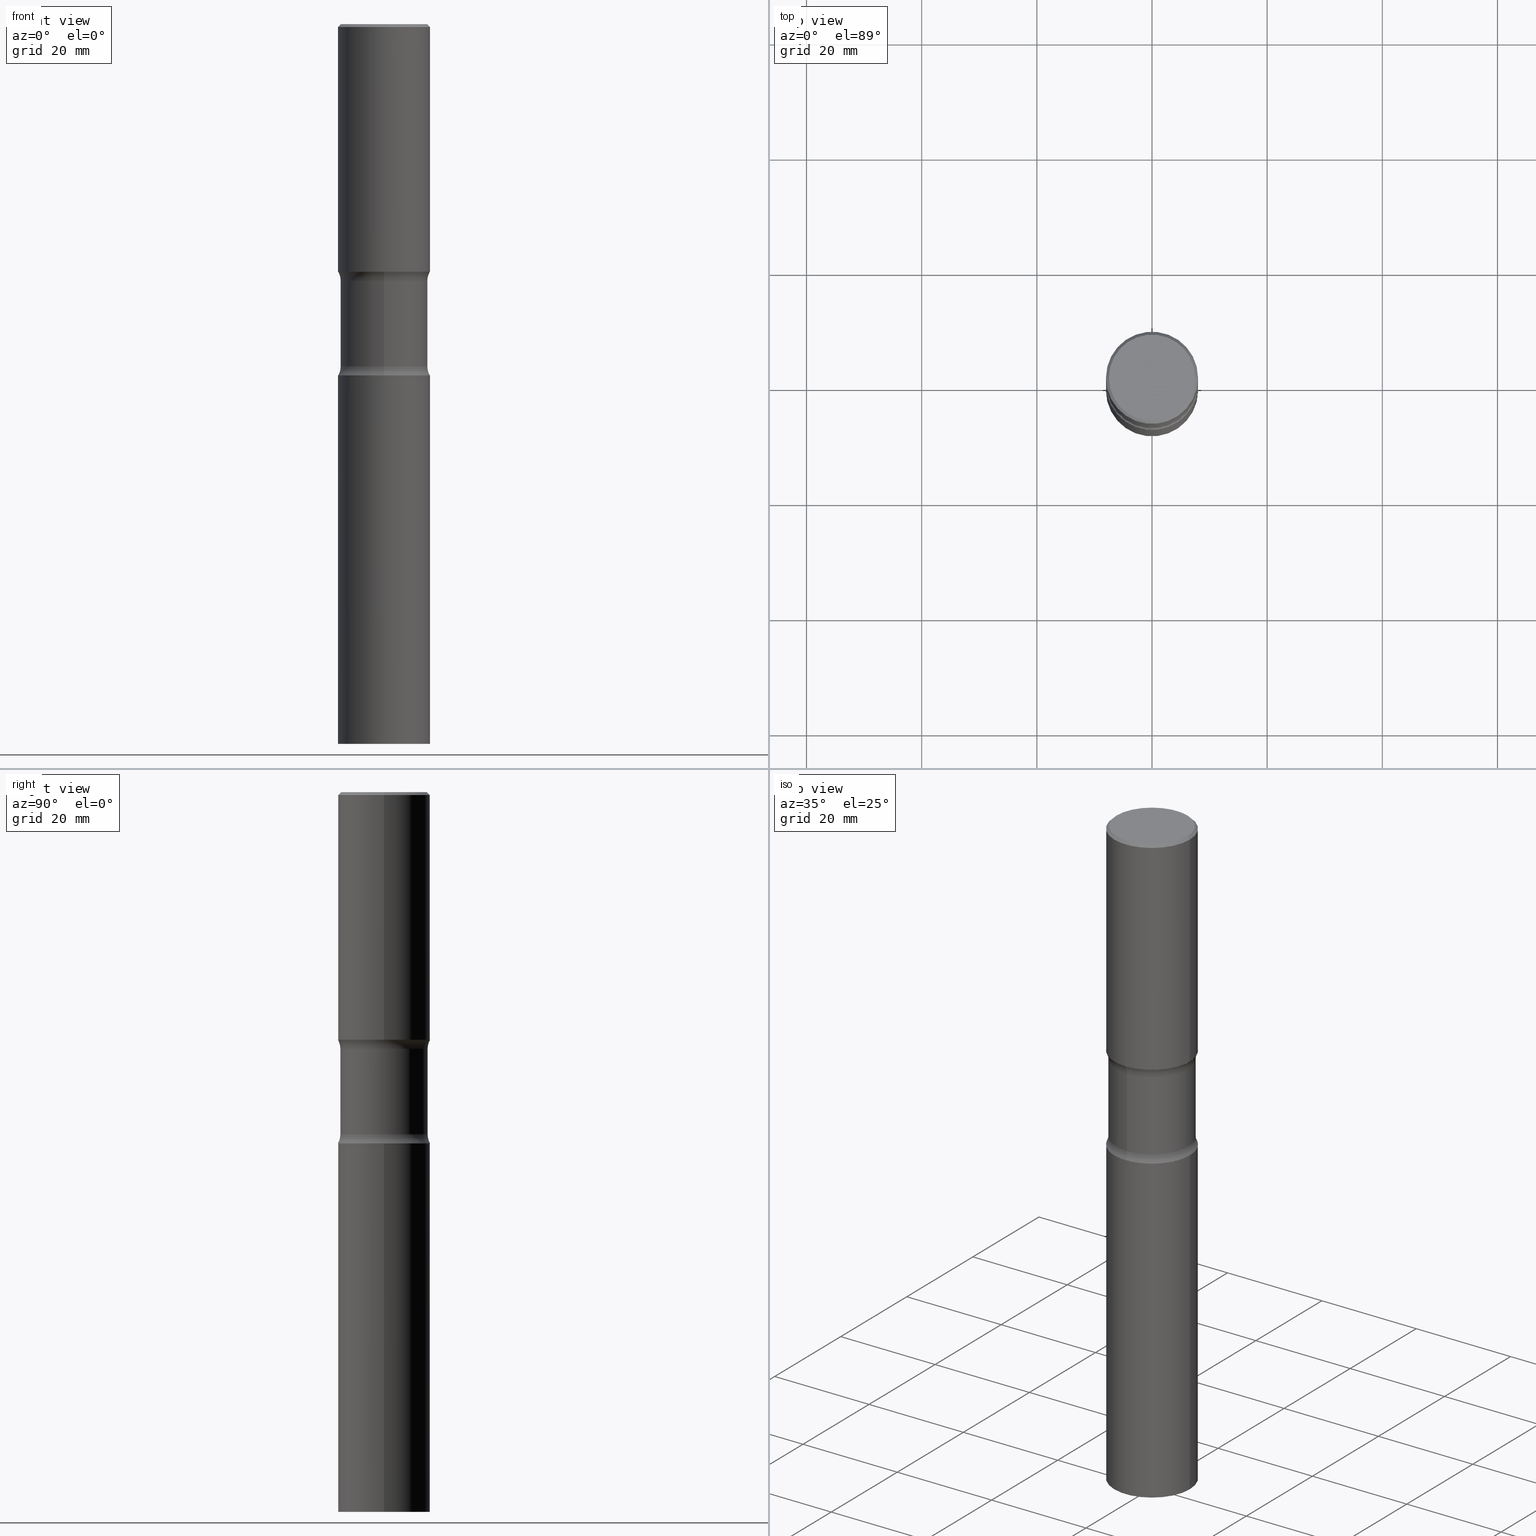
[diagram: canonical four-view strip — front | top / right | iso, engineering-drawing reading convention]
A machine part, canonical four-view strip (front | top / right | iso — engineering-drawing reading convention). The complete STEP part file that produces these views, byte-faithful:
ISO-10303-21;
HEADER;
FILE_DESCRIPTION (( 'STEP AP203' ),
    '1' );
FILE_NAME ('44635.STEP',
    '2024-03-11T13:38:21',
    ( '' ),
    ( '' ),
    'SwSTEP 2.0',
    'SolidWorks 2023',
    '' );
FILE_SCHEMA (( 'CONFIG_CONTROL_DESIGN' ));
ENDSEC;

DATA;
#1 = CARTESIAN_POINT ( 'NONE',  ( 5.721460289123445137E-29, -8.168728948773303843E-15, -2.339616957964294919 ) ) ;
#2 = ADVANCED_FACE ( 'NONE', ( #207 ), #354, .F. ) ;
#3 = CARTESIAN_POINT ( 'NONE',  ( 0.3149499999999998967, -2.199284095337288688E-15, 1.535751875536929289E-29 ) ) ;
#4 = DIRECTION ( 'NONE',  ( -1.000000000000000000, 6.982962677686265922E-15, -4.876176775795935793E-29 ) ) ;
#5 = AXIS2_PLACEMENT_3D ( 'NONE', #191, #146, #340 ) ;
#6 = VERTEX_POINT ( 'NONE', #454 ) ;
#7 = CARTESIAN_POINT ( 'NONE',  ( 1.213026759878326104E-28, -1.704603471316555974E-14, -4.921299999999999564 ) ) ;
#8 = ORIENTED_EDGE ( 'NONE', *, *, #71, .T. ) ;
#9 = DIRECTION ( 'NONE',  ( -6.982962677686265922E-15, -1.000000000000000000, 3.437271552089479602E-15 ) ) ;
#10 = ORIENTED_EDGE ( 'NONE', *, *, #19, .F. ) ;
#11 = ADVANCED_FACE ( 'NONE', ( #367 ), #490, .F. ) ;
#12 = DIRECTION ( 'NONE',  ( 6.982962677686265922E-15, 1.000000000000000000, -3.437271552089479207E-15 ) ) ;
#13 = AXIS2_PLACEMENT_3D ( 'NONE', #269, #33, #383 ) ;
#14 = VERTEX_POINT ( 'NONE', #68 ) ;
#15 = ORIENTED_EDGE ( 'NONE', *, *, #106, .T. ) ;
#16 = DIRECTION ( 'NONE',  ( 2.483323297951755230E-29, -3.437271552089479602E-15, -1.000000000000000000 ) ) ;
#17 = MANIFOLD_SOLID_BREP ( 'Body-Move/Copy2[2]', #434 ) ;
#18 = ORIENTED_EDGE ( 'NONE', *, *, #126, .T. ) ;
#19 = EDGE_CURVE ( 'NONE', #328, #98, #330, .T. ) ;
#20 = ORIENTED_EDGE ( 'NONE', *, *, #391, .T. ) ;
#21 = APPROVAL_ROLE ( '' ) ;
#22 = CARTESIAN_POINT ( 'NONE',  ( 4.244065303230040440E-29, -6.195786741095445622E-15, -1.754983042035704877 ) ) ;
#23 = ORIENTED_EDGE ( 'NONE', *, *, #124, .F. ) ;
#24 = FACE_OUTER_BOUND ( 'NONE', #440, .T. ) ;
#25 = LOCAL_TIME ( 9, 38, 21.00000000000000000, #503 ) ;
#26 = EDGE_LOOP ( 'NONE', ( #431, #217, #63, #436 ) ) ;
#27 = CC_DESIGN_DATE_AND_TIME_ASSIGNMENT ( #230, #77, ( #508 ) ) ;
#28 = DIRECTION ( 'NONE',  ( -0.7071067811865471286, 2.468850131082252722E-15, -0.7071067811865479058 ) ) ;
#29 = ORIENTED_EDGE ( 'NONE', *, *, #247, .T. ) ;
#30 = COORDINATED_UNIVERSAL_TIME_OFFSET ( 5, 0, .BEHIND. ) ;
#31 = DIRECTION ( 'NONE',  ( 1.000000000000000000, -6.982962677686265922E-15, 4.876176775795935232E-29 ) ) ;
#32 = EDGE_CURVE ( 'NONE', #214, #151, #97, .T. ) ;
#33 = DIRECTION ( 'NONE',  ( 2.445468806185136597E-29, -3.491481338843145583E-15, -1.000000000000000000 ) ) ;
#34 = CLOSED_SHELL ( 'NONE', ( #397, #42, #229, #411 ) ) ;
#35 = CONICAL_SURFACE ( 'NONE', #395, 0.3149499999999998967, 0.7853981633974477239 ) ;
#36 = APPROVAL ( #417, 'UNSPECIFIED' ) ;
#37 = SECURITY_CLASSIFICATION ( '', '', #384 ) ;
#38 = CC_DESIGN_APPROVAL ( #438, ( #37 ) ) ;
#39 = PERSON_AND_ORGANIZATION ( #267, #91 ) ;
#40 = CARTESIAN_POINT ( 'NONE',  ( 5.873037884934224349E-29, -8.385141583365698841E-15, -2.401600000000000179 ) ) ;
#41 = PERSON_AND_ORGANIZATION_ROLE ( 'design_supplier' ) ;
#42 = ADVANCED_FACE ( 'NONE', ( #193 ), #420, .T. ) ;
#43 = CARTESIAN_POINT ( 'NONE',  ( -0.3149499999999999522, -1.054603000183079934E-14, -2.401600000000000179 ) ) ;
#44 = ADVANCED_FACE ( 'NONE', ( #185 ), #321, .F. ) ;
#45 = FACE_OUTER_BOUND ( 'NONE', #364, .T. ) ;
#46 = CLOSED_SHELL ( 'NONE', ( #423, #196, #333, #44, #11, #365, #345, #441 ) ) ;
#47 = CIRCLE ( 'NONE', #168, 0.2949499999999998234 ) ;
#48 = DIRECTION ( 'NONE',  ( 1.000000000000000000, -6.982962677686265922E-15, 0.000000000000000000 ) ) ;
#49 = EDGE_CURVE ( 'NONE', #109, #6, #388, .T. ) ;
#50 = CYLINDRICAL_SURFACE ( 'NONE', #163, 0.3149499999999998967 ) ;
#51 = CIRCLE ( 'NONE', #428, 0.2949499999999998234 ) ;
#52 = FACE_OUTER_BOUND ( 'NONE', #139, .T. ) ;
#53 = CIRCLE ( 'NONE', #474, 0.3149500000000000077 ) ;
#54 = ORIENTED_EDGE ( 'NONE', *, *, #350, .F. ) ;
#55 = ADVANCED_FACE ( 'NONE', ( #24 ), #150, .T. ) ;
#56 = PLANE ( 'NONE',  #323 ) ;
#57 = ORIENTED_EDGE ( 'NONE', *, *, #285, .T. ) ;
#58 = CARTESIAN_POINT ( 'NONE',  ( -2.160713844398084198E-15, -0.3149500000000083344, -2.401599999999998847 ) ) ;
#59 = ORIENTED_EDGE ( 'NONE', *, *, #124, .T. ) ;
#60 = ORIENTED_EDGE ( 'NONE', *, *, #49, .F. ) ;
#61 = DIRECTION ( 'NONE',  ( -2.445468806185136597E-29, 3.491481338843145583E-15, 1.000000000000000000 ) ) ;
#62 = VECTOR ( 'NONE', #352, 39.37007874015748143 ) ;
#63 = ORIENTED_EDGE ( 'NONE', *, *, #232, .T. ) ;
#64 = DIRECTION ( 'NONE',  ( 2.483323297951754950E-29, -3.437271552089479207E-15, -1.000000000000000000 ) ) ;
#65 = DIRECTION ( 'NONE',  ( 6.982962677686265922E-15, 1.000000000000000000, -3.469564049740292770E-15 ) ) ;
#66 = ORIENTED_EDGE ( 'NONE', *, *, #250, .T. ) ;
#67 = CARTESIAN_POINT ( 'NONE',  ( 5.873037884934223228E-29, -8.385141583365697263E-15, -2.401599999999999735 ) ) ;
#68 = CARTESIAN_POINT ( 'NONE',  ( -0.3149499999999998967, 2.129454468560425784E-15, -0.02000000000000006981 ) ) ;
#69 = ORIENTED_EDGE ( 'NONE', *, *, #250, .F. ) ;
#70 = DIRECTION ( 'NONE',  ( -2.445468806185136877E-29, 3.491481338843145188E-15, 1.000000000000000000 ) ) ;
#71 = EDGE_CURVE ( 'NONE', #14, #98, #435, .T. ) ;
#72 = CARTESIAN_POINT ( 'NONE',  ( 1.203488563587891146E-28, -1.718262711284877024E-14, -4.921299999999999564 ) ) ;
#73 = AXIS2_PLACEMENT_3D ( 'NONE', #266, #342, #379 ) ;
#74 = CIRCLE ( 'NONE', #497, 0.3149500000000000077 ) ;
#75 = APPROVAL_ROLE ( '' ) ;
#76 = DIRECTION ( 'NONE',  ( -2.445468806185136597E-29, 3.491481338843145583E-15, 1.000000000000000000 ) ) ;
#77 = DATE_TIME_ROLE ( 'creation_date' ) ;
#78 = CALENDAR_DATE ( 2024, 11, 3 ) ;
#79 = DIRECTION ( 'NONE',  ( 1.000000000000000000, -6.982962677686266711E-15, 4.876176775795935232E-29 ) ) ;
#80 = AXIS2_PLACEMENT_3D ( 'NONE', #107, #262, #413 ) ;
#81 = DIRECTION ( 'NONE',  ( -2.445468806185136877E-29, 3.491481338843145188E-15, 1.000000000000000000 ) ) ;
#82 = DIRECTION ( 'NONE',  ( 6.982962677686264344E-15, 1.000000000000000000, -3.469564049740293558E-15 ) ) ;
#83 = CARTESIAN_POINT ( 'NONE',  ( 4.890937612370289799E-31, -6.982962677686315028E-17, -0.02000000000000006981 ) ) ;
#84 = AXIS2_PLACEMENT_3D ( 'NONE', #351, #272, #502 ) ;
#85 = CARTESIAN_POINT ( 'NONE',  ( 0.000000000000000000, 0.000000000000000000, 0.000000000000000000 ) ) ;
#86 = CARTESIAN_POINT ( 'NONE',  ( 4.113354996005609092E-29, -5.949490961555092735E-15, -1.692999999999999616 ) ) ;
#87 = CC_DESIGN_PERSON_AND_ORGANIZATION_ASSIGNMENT ( #156, #159, ( #37 ) ) ;
#88 = CARTESIAN_POINT ( 'NONE',  ( -2.047858652334681138E-15, -0.2985000000000170850, -4.921299999999998676 ) ) ;
#89 = ORIENTED_EDGE ( 'NONE', *, *, #277, .F. ) ;
#90 = DIRECTION ( 'NONE',  ( -2.483323297951754390E-29, 3.437271552089479602E-15, 1.000000000000000000 ) ) ;
#91 = ORGANIZATION ( 'UNSPECIFIED', 'UNSPECIFIED', '' ) ;
#92 = EDGE_LOOP ( 'NONE', ( #10, #317, #409, #8 ) ) ;
#93 = DIRECTION ( 'NONE',  ( 1.000000000000000000, -6.982962677686266711E-15, 0.000000000000000000 ) ) ;
#94 = ORIENTED_EDGE ( 'NONE', *, *, #373, .T. ) ;
#95 = CARTESIAN_POINT ( 'NONE',  ( 1.203488563587891146E-28, -1.718262711284877024E-14, -4.921299999999999564 ) ) ;
#96 = ORIENTED_EDGE ( 'NONE', *, *, #19, .T. ) ;
#97 = CIRCLE ( 'NONE', #347, 0.3149500000000000077 ) ;
#98 = VERTEX_POINT ( 'NONE', #495 ) ;
#99 = PERSON_AND_ORGANIZATION ( #267, #91 ) ;
#100 = DESIGN_CONTEXT ( 'detailed design', #158, 'design' ) ;
#101 = AXIS2_PLACEMENT_3D ( 'NONE', #346, #507, #504 ) ;
#102 = LOCAL_TIME ( 9, 38, 21.00000000000000000, #338 ) ;
#103 = VERTEX_POINT ( 'NONE', #297 ) ;
#104 = ORIENTED_EDGE ( 'NONE', *, *, #108, .F. ) ;
#105 = CARTESIAN_POINT ( 'NONE',  ( 2.059624841783562880E-15, 0.2949499999999998234, -1.023409652156634547E-15 ) ) ;
#106 = EDGE_CURVE ( 'NONE', #293, #210, #506, .T. ) ;
#107 = CARTESIAN_POINT ( 'NONE',  ( 1.203488563587891146E-28, -1.718262711284877024E-14, -4.921299999999999564 ) ) ;
#108 = EDGE_CURVE ( 'NONE', #210, #293, #264, .T. ) ;
#109 = VERTEX_POINT ( 'NONE', #153 ) ;
#110 = DIRECTION ( 'NONE',  ( 0.7071067811865471286, -7.319954787623254468E-15, -0.7071067811865479058 ) ) ;
#111 = AXIS2_PLACEMENT_3D ( 'NONE', #22, #145, #304 ) ;
#112 = VECTOR ( 'NONE', #425, 39.37007874015748143 ) ;
#113 = AXIS2_PLACEMENT_3D ( 'NONE', #7, #64, #149 ) ;
#114 = APPROVAL_DATE_TIME ( #220, #36 ) ;
#115 = FACE_OUTER_BOUND ( 'NONE', #92, .T. ) ;
#116 = PERSON_AND_ORGANIZATION ( #267, #91 ) ;
#117 = DIRECTION ( 'NONE',  ( 6.982962677686265922E-15, 1.000000000000000000, -3.660767830705878378E-15 ) ) ;
#118 = DIRECTION ( 'NONE',  ( 2.445468806185136597E-29, -3.491481338843145583E-15, -1.000000000000000000 ) ) ;
#119 = EDGE_CURVE ( 'NONE', #481, #14, #302, .T. ) ;
#120 = AXIS2_PLACEMENT_3D ( 'NONE', #477, #248, #211 ) ;
#121 = VECTOR ( 'NONE', #70, 39.37007874015748143 ) ;
#122 = DATE_AND_TIME ( #489, #371 ) ;
#123 = CARTESIAN_POINT ( 'NONE',  ( 5.873037884934223228E-29, -8.385141583365697263E-15, -2.401599999999999735 ) ) ;
#124 = EDGE_CURVE ( 'NONE', #328, #481, #47, .T. ) ;
#125 = CARTESIAN_POINT ( 'NONE',  ( -2.905420902056186087E-15, -0.4235000000000082032, -2.339616957964293587 ) ) ;
#126 = EDGE_CURVE ( 'NONE', #481, #328, #51, .T. ) ;
#127 = DIRECTION ( 'NONE',  ( 2.483323297951754950E-29, -3.437271552089479207E-15, -1.000000000000000000 ) ) ;
#128 = AXIS2_PLACEMENT_3D ( 'NONE', #306, #167, #161 ) ;
#129 = LINE ( 'NONE', #3, #322 ) ;
#130 = FACE_OUTER_BOUND ( 'NONE', #290, .T. ) ;
#131 = ORIENTED_EDGE ( 'NONE', *, *, #277, .T. ) ;
#132 = LINE ( 'NONE', #88, #424 ) ;
#133 = ORIENTED_EDGE ( 'NONE', *, *, #32, .F. ) ;
#134 = FACE_OUTER_BOUND ( 'NONE', #319, .T. ) ;
#135 = DIRECTION ( 'NONE',  ( 2.483323297951754950E-29, -3.437271552089479207E-15, -1.000000000000000000 ) ) ;
#136 = ORIENTED_EDGE ( 'NONE', *, *, #458, .T. ) ;
#137 = ADVANCED_FACE ( 'NONE', ( #115 ), #224, .T. ) ;
#138 = PERSON_AND_ORGANIZATION_ROLE ( 'design_owner' ) ;
#139 = EDGE_LOOP ( 'NONE', ( #69, #484 ) ) ;
#140 = ORIENTED_EDGE ( 'NONE', *, *, #458, .F. ) ;
#141 = DIRECTION ( 'NONE',  ( 2.483323297951754950E-29, -3.437271552089479207E-15, -1.000000000000000000 ) ) ;
#142 = AXIS2_PLACEMENT_3D ( 'NONE', #426, #203, #466 ) ;
#143 = APPROVAL ( #366, 'UNSPECIFIED' ) ;
#144 = LOCAL_TIME ( 9, 38, 21.00000000000000000, #303 ) ;
#145 = DIRECTION ( 'NONE',  ( 2.483323297951754950E-29, -3.437271552089479207E-15, -1.000000000000000000 ) ) ;
#146 = DIRECTION ( 'NONE',  ( 2.483323297951754950E-29, -3.437271552089479207E-15, -1.000000000000000000 ) ) ;
#147 = DIRECTION ( 'NONE',  ( 1.000000000000000000, -6.982962677686265922E-15, 0.000000000000000000 ) ) ;
#148 = EDGE_LOOP ( 'NONE', ( #281, #244, #170, #337 ) ) ;
#149 = DIRECTION ( 'NONE',  ( 6.982962677686265922E-15, 1.000000000000000000, -3.660767830705879955E-15 ) ) ;
#150 = CYLINDRICAL_SURFACE ( 'NONE', #292, 0.3149499999999999522 ) ;
#151 = VERTEX_POINT ( 'NONE', #472 ) ;
#152 = DIRECTION ( 'NONE',  ( 1.000000000000000000, 0.000000000000000000, 0.000000000000000000 ) ) ;
#153 = CARTESIAN_POINT ( 'NONE',  ( -2.104286248366415011E-15, -0.2985000000000083142, -2.339616957964294031 ) ) ;
#154 = AXIS2_PLACEMENT_3D ( 'NONE', #125, #276, #427 ) ;
#155 = APPLICATION_CONTEXT ( 'configuration controlled 3d designs of mechanical parts and assemblies' ) ;
#156 = PERSON_AND_ORGANIZATION ( #267, #91 ) ;
#157 = DIRECTION ( 'NONE',  ( 2.483323297951754950E-29, -3.437271552089479207E-15, -1.000000000000000000 ) ) ;
#158 = APPLICATION_CONTEXT ( 'configuration controlled 3d designs of mechanical parts and assemblies' ) ;
#159 = PERSON_AND_ORGANIZATION_ROLE ( 'classification_officer' ) ;
#160 = DIRECTION ( 'NONE',  ( -1.000000000000000000, 6.982962677686265922E-15, -4.876176775795935793E-29 ) ) ;
#161 = DIRECTION ( 'NONE',  ( -6.982962677686267499E-15, -1.000000000000000000, 0.000000000000000000 ) ) ;
#162 = ADVANCED_FACE ( 'NONE', ( #166 ), #35, .T. ) ;
#163 = AXIS2_PLACEMENT_3D ( 'NONE', #442, #429, #398 ) ;
#164 = CARTESIAN_POINT ( 'NONE',  ( -0.3149499999999998967, -1.054603000183079934E-14, -4.921299999999999564 ) ) ;
#165 = CC_DESIGN_PERSON_AND_ORGANIZATION_ASSIGNMENT ( #99, #138, ( #463 ) ) ;
#166 = FACE_OUTER_BOUND ( 'NONE', #258, .T. ) ;
#167 = DIRECTION ( 'NONE',  ( -1.000000000000000000, 6.982962677686265922E-15, -4.883557194083112340E-29 ) ) ;
#168 = AXIS2_PLACEMENT_3D ( 'NONE', #299, #76, #228 ) ;
#169 = DIRECTION ( 'NONE',  ( -2.445468806185136877E-29, 3.491481338843145188E-15, 1.000000000000000000 ) ) ;
#170 = ORIENTED_EDGE ( 'NONE', *, *, #467, .F. ) ;
#171 = FACE_OUTER_BOUND ( 'NONE', #329, .T. ) ;
#172 = ORIENTED_EDGE ( 'NONE', *, *, #471, .T. ) ;
#173 = FACE_OUTER_BOUND ( 'NONE', #416, .T. ) ;
#174 = ORIENTED_EDGE ( 'NONE', *, *, #237, .F. ) ;
#175 = AXIS2_PLACEMENT_3D ( 'NONE', #451, #459, #117 ) ;
#176 = DIRECTION ( 'NONE',  ( 1.000000000000000000, -6.982962677686265922E-15, 4.876176775795935793E-29 ) ) ;
#177 = CC_DESIGN_SECURITY_CLASSIFICATION ( #37, ( #265 ) ) ;
#178 = ORIENTED_EDGE ( 'NONE', *, *, #237, .T. ) ;
#179 = CARTESIAN_POINT ( 'NONE',  ( 0.2949499999999998234, -2.127023677808859286E-15, 1.280553747031587399E-17 ) ) ;
#180 = COORDINATED_UNIVERSAL_TIME_OFFSET ( 5, 0, .BEHIND. ) ;
#181 = DIRECTION ( 'NONE',  ( 6.982962677686264344E-15, 1.000000000000000000, -3.469564049740293558E-15 ) ) ;
#182 = AXIS2_PLACEMENT_3D ( 'NONE', #123, #275, #82 ) ;
#183 = AXIS2_PLACEMENT_3D ( 'NONE', #334, #445, #152 ) ;
#184 = DIRECTION ( 'NONE',  ( 1.000000000000000000, -6.982962677686266711E-15, 4.876176775795935232E-29 ) ) ;
#185 = FACE_OUTER_BOUND ( 'NONE', #26, .T. ) ;
#186 = CC_DESIGN_PERSON_AND_ORGANIZATION_ASSIGNMENT ( #116, #498, ( #265 ) ) ;
#187 = MANIFOLD_SOLID_BREP ( 'Body-Move/Copy2[4]', #46 ) ;
#188 = EDGE_LOOP ( 'NONE', ( #401, #320, #368, #449 ) ) ;
#189 = PERSON_AND_ORGANIZATION ( #267, #91 ) ;
#190 = CARTESIAN_POINT ( 'NONE',  ( -3.131554243005659264E-46, 4.471029511141341874E-32, 1.280553747030123384E-17 ) ) ;
#191 = CARTESIAN_POINT ( 'NONE',  ( 4.267278928370798497E-29, -6.162543508656387165E-15, -1.754983042035704655 ) ) ;
#192 = MANIFOLD_SOLID_BREP ( 'Body-Move/Copy2[1]', #34 ) ;
#193 = FACE_OUTER_BOUND ( 'NONE', #325, .T. ) ;
#194 = CIRCLE ( 'NONE', #142, 0.2985000000000001541 ) ;
#195 = AXIS2_PLACEMENT_3D ( 'NONE', #236, #385, #48 ) ;
#196 = ADVANCED_FACE ( 'NONE', ( #344 ), #341, .F. ) ;
#197 = DATE_TIME_ROLE ( 'classification_date' ) ;
#198 = PRODUCT_RELATED_PRODUCT_CATEGORY ( 'detail', '', ( #463 ) ) ;
#199 = CARTESIAN_POINT ( 'NONE',  ( 0.3149500000000000077, -8.110362001998734458E-15, -1.692999999999999616 ) ) ;
#200 = ADVANCED_FACE ( 'NONE', ( #45 ), #234, .T. ) ;
#201 = CIRCLE ( 'NONE', #154, 0.1249999999999999584 ) ;
#202 = CIRCLE ( 'NONE', #5, 0.2984999999999999876 ) ;
#203 = DIRECTION ( 'NONE',  ( 2.483323297951754950E-29, -3.437271552089479207E-15, -1.000000000000000000 ) ) ;
#204 = CC_DESIGN_PERSON_AND_ORGANIZATION_ASSIGNMENT ( #39, #41, ( #265 ) ) ;
#205 = CARTESIAN_POINT ( 'NONE',  ( 0.3149499999999998967, -1.938191120818605853E-14, -4.921299999999999564 ) ) ;
#206 = PLANE ( 'NONE',  #308 ) ;
#207 = FACE_OUTER_BOUND ( 'NONE', #300, .T. ) ;
#208 = CIRCLE ( 'NONE', #195, 0.3149499999999998967 ) ;
#209 = DIRECTION ( 'NONE',  ( 2.483323297951754950E-29, -3.437271552089479207E-15, -1.000000000000000000 ) ) ;
#210 = VERTEX_POINT ( 'NONE', #205 ) ;
#211 = DIRECTION ( 'NONE',  ( 1.000000000000000000, -6.982962677686268288E-15, 0.000000000000000000 ) ) ;
#212 = ORIENTED_EDGE ( 'NONE', *, *, #336, .F. ) ;
#213 = FACE_OUTER_BOUND ( 'NONE', #362, .T. ) ;
#214 = VERTEX_POINT ( 'NONE', #312 ) ;
#215 = EDGE_CURVE ( 'NONE', #254, #288, #255, .T. ) ;
#216 = TOROIDAL_SURFACE ( 'NONE', #381, 0.4234999999999999876, 0.1249999999999999861 ) ;
#217 = ORIENTED_EDGE ( 'NONE', *, *, #215, .F. ) ;
#218 = FACE_OUTER_BOUND ( 'NONE', #252, .T. ) ;
#219 = ORIENTED_EDGE ( 'NONE', *, *, #505, .F. ) ;
#220 = DATE_AND_TIME ( #227, #331 ) ;
#221 = EDGE_CURVE ( 'NONE', #210, #298, #129, .T. ) ;
#222 = DIRECTION ( 'NONE',  ( -2.445468806185136597E-29, 3.491481338843145583E-15, 1.000000000000000000 ) ) ;
#223 = ORIENTED_EDGE ( 'NONE', *, *, #386, .T. ) ;
#224 = CONICAL_SURFACE ( 'NONE', #13, 0.3149499999999998967, 0.7853981633974477239 ) ;
#225 = DIRECTION ( 'NONE',  ( -2.445468806185136597E-29, 3.491481338843145583E-15, 1.000000000000000000 ) ) ;
#226 = ORIENTED_EDGE ( 'NONE', *, *, #467, .T. ) ;
#227 = CALENDAR_DATE ( 2024, 11, 3 ) ;
#228 = DIRECTION ( 'NONE',  ( 1.000000000000000000, -6.982962677686267499E-15, 4.876053491004737710E-29 ) ) ;
#229 = ADVANCED_FACE ( 'NONE', ( #313 ), #389, .F. ) ;
#230 = DATE_AND_TIME ( #406, #102 ) ;
#231 = DIMENSIONAL_EXPONENTS ( 1.000000000000000000, 0.000000000000000000, 0.000000000000000000, 0.000000000000000000, 0.000000000000000000, 0.000000000000000000, 0.000000000000000000 ) ;
#232 = EDGE_CURVE ( 'NONE', #254, #151, #235, .T. ) ;
#233 = CALENDAR_DATE ( 2024, 11, 3 ) ;
#234 = CYLINDRICAL_SURFACE ( 'NONE', #464, 0.3149499999999999522 ) ;
#235 = CIRCLE ( 'NONE', #128, 0.1249999999999999584 ) ;
#236 = CARTESIAN_POINT ( 'NONE',  ( 4.890937612370289799E-31, -6.982962677686315028E-17, -0.02000000000000006981 ) ) ;
#237 = EDGE_CURVE ( 'NONE', #103, #14, #461, .T. ) ;
#238 = DIRECTION ( 'NONE',  ( -1.000000000000000000, 6.982962677686265922E-15, 0.000000000000000000 ) ) ;
#239 = DIRECTION ( 'NONE',  ( -2.445468806185136597E-29, 3.491481338843145583E-15, 1.000000000000000000 ) ) ;
#240 = AXIS2_PLACEMENT_3D ( 'NONE', #72, #225, #418 ) ;
#241 = DIRECTION ( 'NONE',  ( 2.483323297951754950E-29, -3.437271552089479207E-15, -1.000000000000000000 ) ) ;
#242 = UNCERTAINTY_MEASURE_WITH_UNIT (LENGTH_MEASURE( 1.000000000000000082E-05 ), #412, 'distance_accuracy_value', 'NONE');
#243 = FACE_OUTER_BOUND ( 'NONE', #148, .T. ) ;
#244 = ORIENTED_EDGE ( 'NONE', *, *, #336, .T. ) ;
#245 = VECTOR ( 'NONE', #169, 39.37007874015748143 ) ;
#246 = APPROVAL_PERSON_ORGANIZATION ( #457, #438, #305 ) ;
#247 = EDGE_CURVE ( 'NONE', #98, #14, #208, .T. ) ;
#248 = DIRECTION ( 'NONE',  ( -2.445468806185136597E-29, 3.491481338843145583E-15, 1.000000000000000000 ) ) ;
#249 = VERTEX_POINT ( 'NONE', #43 ) ;
#250 = EDGE_CURVE ( 'NONE', #291, #103, #390, .T. ) ;
#251 = DIRECTION ( 'NONE',  ( -1.000000000000000000, 6.982962677686265922E-15, -4.883557194083112340E-29 ) ) ;
#252 = EDGE_LOOP ( 'NONE', ( #478, #136, #94, #60 ) ) ;
#253 = PLANE ( 'NONE',  #279 ) ;
#254 = VERTEX_POINT ( 'NONE', #307 ) ;
#255 = CIRCLE ( 'NONE', #84, 0.2984999999999999876 ) ;
#256 = PERSON_AND_ORGANIZATION ( #267, #91 ) ;
#257 = APPROVAL_PERSON_ORGANIZATION ( #378, #143, #21 ) ;
#258 = EDGE_LOOP ( 'NONE', ( #23, #96, #29, #487 ) ) ;
#259 = CARTESIAN_POINT ( 'NONE',  ( -0.2949499999999998234, 2.094539655171994135E-15, 1.280553747028670770E-17 ) ) ;
#260 = CARTESIAN_POINT ( 'NONE',  ( 0.000000000000000000, 0.000000000000000000, 0.000000000000000000 ) ) ;
#261 = CARTESIAN_POINT ( 'NONE',  ( 5.873037884934224349E-29, -8.385141583365698841E-15, -2.401600000000000179 ) ) ;
#262 = DIRECTION ( 'NONE',  ( -2.445468806185136597E-29, 3.491481338843145583E-15, 1.000000000000000000 ) ) ;
#263 = ORIENTED_EDGE ( 'NONE', *, *, #471, .F. ) ;
#264 = CIRCLE ( 'NONE', #240, 0.3149499999999998967 ) ;
#265 = PRODUCT_DEFINITION_FORMATION_WITH_SPECIFIED_SOURCE ( 'ANY', '', #463, .NOT_KNOWN. ) ;
#266 = CARTESIAN_POINT ( 'NONE',  ( 4.140178688871434900E-29, -5.911077906661444587E-15, -1.692999999999999616 ) ) ;
#267 = PERSON ( 'UNSPECIFIED', 'UNSPECIFIED', 'UNSPECIFIED', ('UNSPECIFIED'), ('UNSPECIFIED'), ('UNSPECIFIED') ) ;
#268 = PERSON_AND_ORGANIZATION_ROLE ( 'creator' ) ;
#269 = CARTESIAN_POINT ( 'NONE',  ( 4.890937612370289799E-31, -6.982962677686315028E-17, -0.02000000000000006981 ) ) ;
#270 = DATE_AND_TIME ( #233, #144 ) ;
#271 = DIRECTION ( 'NONE',  ( -2.445468806185136597E-29, 3.491481338843145583E-15, 1.000000000000000000 ) ) ;
#272 = DIRECTION ( 'NONE',  ( 2.483323297951754950E-29, -3.437271552089479207E-15, -1.000000000000000000 ) ) ;
#273 = CIRCLE ( 'NONE', #120, 0.3149499999999999522 ) ;
#274 = AXIS2_PLACEMENT_3D ( 'NONE', #316, #209, #403 ) ;
#275 = DIRECTION ( 'NONE',  ( 2.483323297951754950E-29, -3.437271552089479207E-15, -1.000000000000000000 ) ) ;
#276 = DIRECTION ( 'NONE',  ( 1.000000000000000000, -6.860497997771530774E-15, 4.841462758042446305E-29 ) ) ;
#277 = EDGE_CURVE ( 'NONE', #6, #109, #194, .T. ) ;
#278 = DIRECTION ( 'NONE',  ( 6.982962677686265922E-15, 1.000000000000000000, -3.437271552089479207E-15 ) ) ;
#279 = AXIS2_PLACEMENT_3D ( 'NONE', #430, #90, #9 ) ;
#280 = CARTESIAN_POINT ( 'NONE',  ( 2.957284694000191129E-15, 0.4234999999999918274, -2.339616957964296251 ) ) ;
#281 = ORIENTED_EDGE ( 'NONE', *, *, #108, .T. ) ;
#282 = DIRECTION ( 'NONE',  ( 1.000000000000000000, -6.860497997771530774E-15, 4.841462758042446305E-29 ) ) ;
#283 = ORIENTED_EDGE ( 'NONE', *, *, #32, .T. ) ;
#284 = AXIS2_PLACEMENT_3D ( 'NONE', #105, #377, #369 ) ;
#285 = EDGE_CURVE ( 'NONE', #356, #444, #470, .T. ) ;
#286 = CC_DESIGN_APPROVAL ( #143, ( #265 ) ) ;
#287 = CYLINDRICAL_SURFACE ( 'NONE', #113, 0.2985000000000000431 ) ;
#288 = VERTEX_POINT ( 'NONE', #348 ) ;
#289 = LINE ( 'NONE', #479, #62 ) ;
#290 = EDGE_LOOP ( 'NONE', ( #360, #219, #223, #131 ) ) ;
#291 = VERTEX_POINT ( 'NONE', #199 ) ;
#292 = AXIS2_PLACEMENT_3D ( 'NONE', #499, #271, #184 ) ;
#293 = VERTEX_POINT ( 'NONE', #164 ) ;
#294 = CARTESIAN_POINT ( 'NONE',  ( 0.3149499999999999522, -2.199284095337289476E-15, 1.535751875536929569E-29 ) ) ;
#295 = CARTESIAN_POINT ( 'NONE',  ( 0.3149499999999998967, -2.230543471175006266E-15, -0.02000000000000006981 ) ) ;
#296 = LINE ( 'NONE', #294, #121 ) ;
#297 = CARTESIAN_POINT ( 'NONE',  ( -0.3149500000000000077, -7.525994204427177605E-16, -1.692999999999999616 ) ) ;
#298 = VERTEX_POINT ( 'NONE', #311 ) ;
#299 = CARTESIAN_POINT ( 'NONE',  ( -3.131554243005659264E-46, 4.471029511141341874E-32, 1.280553747030123384E-17 ) ) ;
#300 = EDGE_LOOP ( 'NONE', ( #18, #59 ) ) ;
#301 =( NAMED_UNIT ( * ) PLANE_ANGLE_UNIT ( ) SI_UNIT ( $, .RADIAN. ) );
#302 = LINE ( 'NONE', #374, #480 ) ;
#303 = COORDINATED_UNIVERSAL_TIME_OFFSET ( 5, 0, .BEHIND. ) ;
#304 = DIRECTION ( 'NONE',  ( 6.982962677686265922E-15, 1.000000000000000000, -3.437271552089479207E-15 ) ) ;
#305 = APPROVAL_ROLE ( '' ) ;
#306 = CARTESIAN_POINT ( 'NONE',  ( 2.957284694000176140E-15, 0.4234999999999937703, -1.754983042035706209 ) ) ;
#307 = CARTESIAN_POINT ( 'NONE',  ( 2.084414359289392801E-15, 0.2984999999999938258, -1.754983042035705765 ) ) ;
#308 = AXIS2_PLACEMENT_3D ( 'NONE', #95, #439, #4 ) ;
#309 =( GEOMETRIC_REPRESENTATION_CONTEXT ( 3 ) GLOBAL_UNCERTAINTY_ASSIGNED_CONTEXT ( ( #242 ) ) GLOBAL_UNIT_ASSIGNED_CONTEXT ( ( #412, #301, #410 ) ) REPRESENTATION_CONTEXT ( 'NONE', 'WORKASPACE' ) );
#310 = EDGE_CURVE ( 'NONE', #356, #109, #201, .T. ) ;
#311 = CARTESIAN_POINT ( 'NONE',  ( 0.3149499999999999522, -1.058442567870298871E-14, -2.401600000000000179 ) ) ;
#312 = CARTESIAN_POINT ( 'NONE',  ( -2.160713844398102736E-15, -0.3149500000000060029, -1.692999999999998506 ) ) ;
#313 = FACE_OUTER_BOUND ( 'NONE', #396, .T. ) ;
#314 = VECTOR ( 'NONE', #110, 39.37007874015748143 ) ;
#315 = AXIS2_PLACEMENT_3D ( 'NONE', #40, #469, #160 ) ;
#316 = CARTESIAN_POINT ( 'NONE',  ( 1.213026759878326104E-28, -1.704603471316555974E-14, -4.921299999999999564 ) ) ;
#317 = ORIENTED_EDGE ( 'NONE', *, *, #126, .F. ) ;
#318 = DIRECTION ( 'NONE',  ( 2.483323297951754950E-29, -3.437271552089479207E-15, -1.000000000000000000 ) ) ;
#319 = EDGE_LOOP ( 'NONE', ( #452, #485, #89, #375 ) ) ;
#320 = ORIENTED_EDGE ( 'NONE', *, *, #310, .T. ) ;
#321 = TOROIDAL_SURFACE ( 'NONE', #111, 0.4234999999999999876, 0.1249999999999999861 ) ;
#322 = VECTOR ( 'NONE', #81, 39.37007874015748143 ) ;
#323 = AXIS2_PLACEMENT_3D ( 'NONE', #324, #359, #176 ) ;
#324 = CARTESIAN_POINT ( 'NONE',  ( 4.140178688871434900E-29, -5.911077906661444587E-15, -1.692999999999999616 ) ) ;
#325 = EDGE_LOOP ( 'NONE', ( #212, #15, #443, #446 ) ) ;
#326 = EDGE_CURVE ( 'NONE', #288, #214, #361, .T. ) ;
#327 = CARTESIAN_POINT ( 'NONE',  ( -2.905420902056201075E-15, -0.4235000000000062048, -1.754983042035703544 ) ) ;
#328 = VERTEX_POINT ( 'NONE', #179 ) ;
#329 = EDGE_LOOP ( 'NONE', ( #358, #57 ) ) ;
#330 = LINE ( 'NONE', #295, #314 ) ;
#331 = LOCAL_TIME ( 9, 38, 21.00000000000000000, #30 ) ;
#332 = CARTESIAN_POINT ( 'NONE',  ( 4.890937612370289799E-31, -6.982962677686315028E-17, -0.02000000000000006981 ) ) ;
#333 = ADVANCED_FACE ( 'NONE', ( #173 ), #216, .F. ) ;
#334 = CARTESIAN_POINT ( 'NONE',  ( 0.000000000000000000, 0.000000000000000000, 0.000000000000000000 ) ) ;
#335 = CARTESIAN_POINT ( 'NONE',  ( 4.113354996005609092E-29, -5.949490961555092735E-15, -1.692999999999999616 ) ) ;
#336 = EDGE_CURVE ( 'NONE', #293, #249, #393, .T. ) ;
#337 = ORIENTED_EDGE ( 'NONE', *, *, #221, .F. ) ;
#338 = COORDINATED_UNIVERSAL_TIME_OFFSET ( 5, 0, .BEHIND. ) ;
#339 = DIRECTION ( 'NONE',  ( -2.445468806185136597E-29, 3.491481338843145583E-15, 1.000000000000000000 ) ) ;
#340 = DIRECTION ( 'NONE',  ( 6.982962677686265922E-15, 1.000000000000000000, -3.660767830705880744E-15 ) ) ;
#341 = TOROIDAL_SURFACE ( 'NONE', #455, 0.4234999999999999876, 0.1249999999999999445 ) ;
#342 = DIRECTION ( 'NONE',  ( 2.483323297951754390E-29, -3.437271552089479602E-15, -1.000000000000000000 ) ) ;
#343 = APPROVAL_DATE_TIME ( #460, #438 ) ;
#344 = FACE_OUTER_BOUND ( 'NONE', #188, .T. ) ;
#345 = ADVANCED_FACE ( 'NONE', ( #130 ), #370, .F. ) ;
#346 = CARTESIAN_POINT ( 'NONE',  ( 4.140178688871434900E-29, -5.911077906661444587E-15, -1.692999999999999616 ) ) ;
#347 = AXIS2_PLACEMENT_3D ( 'NONE', #335, #157, #65 ) ;
#348 = CARTESIAN_POINT ( 'NONE',  ( -2.104286248366430789E-15, -0.2985000000000060938, -1.754983042035703544 ) ) ;
#349 = CIRCLE ( 'NONE', #465, 0.3149499999999999522 ) ;
#350 = EDGE_CURVE ( 'NONE', #151, #214, #74, .T. ) ;
#351 = CARTESIAN_POINT ( 'NONE',  ( 4.267278928370798497E-29, -6.162543508656387165E-15, -1.754983042035704655 ) ) ;
#352 = DIRECTION ( 'NONE',  ( 2.483323297951755230E-29, -3.437271552089479602E-15, -1.000000000000000000 ) ) ;
#353 = AXIS2_PLACEMENT_3D ( 'NONE', #433, #318, #12 ) ;
#354 = PLANE ( 'NONE',  #284 ) ;
#355 = CARTESIAN_POINT ( 'NONE',  ( 4.140178688871434900E-29, -5.911077906661444587E-15, -1.692999999999999616 ) ) ;
#356 = VERTEX_POINT ( 'NONE', #58 ) ;
#357 = DIRECTION ( 'NONE',  ( 6.982962677686265922E-15, 1.000000000000000000, -3.437271552089479207E-15 ) ) ;
#358 = ORIENTED_EDGE ( 'NONE', *, *, #505, .T. ) ;
#359 = DIRECTION ( 'NONE',  ( -2.438088387897960049E-29, 3.491481338843145188E-15, 1.000000000000000000 ) ) ;
#360 = ORIENTED_EDGE ( 'NONE', *, *, #310, .F. ) ;
#361 = CIRCLE ( 'NONE', #447, 0.1249999999999999584 ) ;
#362 = EDGE_LOOP ( 'NONE', ( #104, #476 ) ) ;
#363 = DIRECTION ( 'NONE',  ( 6.982962677686265922E-15, 1.000000000000000000, -3.469564049740292770E-15 ) ) ;
#364 = EDGE_LOOP ( 'NONE', ( #174, #402, #172, #399 ) ) ;
#365 = ADVANCED_FACE ( 'NONE', ( #171 ), #253, .F. ) ;
#366 = APPROVAL_STATUS ( 'not_yet_approved' ) ;
#367 = FACE_OUTER_BOUND ( 'NONE', #407, .T. ) ;
#368 = ORIENTED_EDGE ( 'NONE', *, *, #49, .T. ) ;
#369 = DIRECTION ( 'NONE',  ( -1.000000000000000000, 6.982962677686265922E-15, -4.876176775795935793E-29 ) ) ;
#370 = TOROIDAL_SURFACE ( 'NONE', #353, 0.4234999999999999876, 0.1249999999999999445 ) ;
#371 = LOCAL_TIME ( 9, 38, 21.00000000000000000, #180 ) ;
#372 = ORIENTED_EDGE ( 'NONE', *, *, #232, .F. ) ;
#373 = EDGE_CURVE ( 'NONE', #254, #6, #289, .T. ) ;
#374 = CARTESIAN_POINT ( 'NONE',  ( -0.3149499999999998967, 2.129454468560425784E-15, -0.02000000000000006981 ) ) ;
#375 = ORIENTED_EDGE ( 'NONE', *, *, #373, .F. ) ;
#376 = APPLICATION_PROTOCOL_DEFINITION ( 'international standard', 'config_control_design', 1994, #158 ) ;
#377 = DIRECTION ( 'NONE',  ( 2.438088387897960049E-29, -3.491481338843145188E-15, -1.000000000000000000 ) ) ;
#378 = PERSON_AND_ORGANIZATION ( #267, #91 ) ;
#379 = DIRECTION ( 'NONE',  ( 6.982962677686265922E-15, 1.000000000000000000, -3.437271552089479602E-15 ) ) ;
#380 = EDGE_CURVE ( 'NONE', #288, #109, #132, .T. ) ;
#381 = AXIS2_PLACEMENT_3D ( 'NONE', #483, #135, #357 ) ;
#382 = APPROVAL_DATE_TIME ( #122, #143 ) ;
#383 = DIRECTION ( 'NONE',  ( -1.000000000000000000, 6.982962677686265922E-15, 0.000000000000000000 ) ) ;
#384 = SECURITY_CLASSIFICATION_LEVEL ( 'unclassified' ) ;
#385 = DIRECTION ( 'NONE',  ( -2.445468806185136597E-29, 3.491481338843145583E-15, 1.000000000000000000 ) ) ;
#386 = EDGE_CURVE ( 'NONE', #444, #6, #491, .T. ) ;
#387 = CARTESIAN_POINT ( 'NONE',  ( -0.3149499999999999522, 2.237854346276435196E-15, -1.549218606675782116E-29 ) ) ;
#388 = CIRCLE ( 'NONE', #175, 0.2985000000000001541 ) ;
#389 = PLANE ( 'NONE',  #315 ) ;
#390 = CIRCLE ( 'NONE', #101, 0.3149500000000000077 ) ;
#391 = EDGE_CURVE ( 'NONE', #249, #298, #273, .T. ) ;
#392 = APPROVAL_PERSON_ORGANIZATION ( #256, #36, #75 ) ;
#393 = LINE ( 'NONE', #475, #245 ) ;
#394 = CYLINDRICAL_SURFACE ( 'NONE', #274, 0.2985000000000000431 ) ;
#395 = AXIS2_PLACEMENT_3D ( 'NONE', #83, #118, #238 ) ;
#396 = EDGE_LOOP ( 'NONE', ( #226, #20 ) ) ;
#397 = ADVANCED_FACE ( 'NONE', ( #243 ), #50, .T. ) ;
#398 = DIRECTION ( 'NONE',  ( 1.000000000000000000, -6.982962677686265922E-15, 4.876176775795935232E-29 ) ) ;
#399 = ORIENTED_EDGE ( 'NONE', *, *, #71, .F. ) ;
#400 = DIRECTION ( 'NONE',  ( -6.982962677686265133E-15, -1.000000000000000000, 0.000000000000000000 ) ) ;
#401 = ORIENTED_EDGE ( 'NONE', *, *, #285, .F. ) ;
#402 = ORIENTED_EDGE ( 'NONE', *, *, #432, .T. ) ;
#403 = DIRECTION ( 'NONE',  ( 6.982962677686265922E-15, 1.000000000000000000, -3.660767830705879955E-15 ) ) ;
#404 = ORIENTED_EDGE ( 'NONE', *, *, #326, .T. ) ;
#405 = AXIS2_PLACEMENT_3D ( 'NONE', #332, #493, #147 ) ;
#406 = CALENDAR_DATE ( 2024, 11, 3 ) ;
#407 = EDGE_LOOP ( 'NONE', ( #54, #133 ) ) ;
#408 = PRODUCT_DEFINITION_SHAPE ( 'NONE', 'NONE',  #508 ) ;
#409 = ORIENTED_EDGE ( 'NONE', *, *, #119, .T. ) ;
#410 =( NAMED_UNIT ( * ) SI_UNIT ( $, .STERADIAN. ) SOLID_ANGLE_UNIT ( ) );
#411 = ADVANCED_FACE ( 'NONE', ( #213 ), #206, .T. ) ;
#412 =( CONVERSION_BASED_UNIT ( 'INCH', #496 ) LENGTH_UNIT ( ) NAMED_UNIT ( #231 ) );
#413 = DIRECTION ( 'NONE',  ( 1.000000000000000000, -6.982962677686259611E-15, 0.000000000000000000 ) ) ;
#414 = AXIS2_PLACEMENT_3D ( 'NONE', #260, #222, #31 ) ;
#415 = CC_DESIGN_APPROVAL ( #36, ( #508 ) ) ;
#416 = EDGE_LOOP ( 'NONE', ( #140, #404, #283, #372 ) ) ;
#417 = APPROVAL_STATUS ( 'not_yet_approved' ) ;
#418 = DIRECTION ( 'NONE',  ( 1.000000000000000000, -6.982962677686259611E-15, 0.000000000000000000 ) ) ;
#419 = DIRECTION ( 'NONE',  ( -2.445468806185136597E-29, 3.491481338843145583E-15, 1.000000000000000000 ) ) ;
#420 = CYLINDRICAL_SURFACE ( 'NONE', #414, 0.3149499999999998967 ) ;
#421 = ADVANCED_FACE ( 'NONE', ( #52 ), #56, .F. ) ;
#422 = APPROVAL_STATUS ( 'not_yet_approved' ) ;
#423 = ADVANCED_FACE ( 'NONE', ( #134 ), #394, .T. ) ;
#424 = VECTOR ( 'NONE', #16, 39.37007874015748143 ) ;
#425 = DIRECTION ( 'NONE',  ( -2.445468806185136877E-29, 3.491481338843145188E-15, 1.000000000000000000 ) ) ;
#426 = CARTESIAN_POINT ( 'NONE',  ( 5.719113952569034944E-29, -8.172089036264403622E-15, -2.339616957964294919 ) ) ;
#427 = DIRECTION ( 'NONE',  ( 6.860497997771529985E-15, 1.000000000000000000, 0.000000000000000000 ) ) ;
#428 = AXIS2_PLACEMENT_3D ( 'NONE', #190, #339, #456 ) ;
#429 = DIRECTION ( 'NONE',  ( -2.445468806185136597E-29, 3.491481338843145583E-15, 1.000000000000000000 ) ) ;
#430 = CARTESIAN_POINT ( 'NONE',  ( 5.873037884934224349E-29, -8.385141583365698841E-15, -2.401600000000000179 ) ) ;
#431 = ORIENTED_EDGE ( 'NONE', *, *, #326, .F. ) ;
#432 = EDGE_CURVE ( 'NONE', #103, #291, #53, .T. ) ;
#433 = CARTESIAN_POINT ( 'NONE',  ( 5.721460289123445137E-29, -8.168728948773303843E-15, -2.339616957964294919 ) ) ;
#434 = CLOSED_SHELL ( 'NONE', ( #55, #162, #137, #2, #421, #200 ) ) ;
#435 = CIRCLE ( 'NONE', #405, 0.3149499999999998967 ) ;
#436 = ORIENTED_EDGE ( 'NONE', *, *, #350, .T. ) ;
#437 = CIRCLE ( 'NONE', #482, 0.3149499999999999522 ) ;
#438 = APPROVAL ( #422, 'UNSPECIFIED' ) ;
#439 = DIRECTION ( 'NONE',  ( 2.438088387897960049E-29, -3.491481338843145188E-15, -1.000000000000000000 ) ) ;
#440 = EDGE_LOOP ( 'NONE', ( #66, #178, #488, #263 ) ) ;
#441 = ADVANCED_FACE ( 'NONE', ( #218 ), #287, .T. ) ;
#442 = CARTESIAN_POINT ( 'NONE',  ( 0.000000000000000000, 0.000000000000000000, 0.000000000000000000 ) ) ;
#443 = ORIENTED_EDGE ( 'NONE', *, *, #221, .T. ) ;
#444 = VERTEX_POINT ( 'NONE', #448 ) ;
#445 = DIRECTION ( 'NONE',  ( 0.000000000000000000, 0.000000000000000000, 1.000000000000000000 ) ) ;
#446 = ORIENTED_EDGE ( 'NONE', *, *, #391, .F. ) ;
#447 = AXIS2_PLACEMENT_3D ( 'NONE', #327, #282, #486 ) ;
#448 = CARTESIAN_POINT ( 'NONE',  ( 2.199284095337347852E-15, 0.3149499999999915145, -2.401600000000001067 ) ) ;
#449 = ORIENTED_EDGE ( 'NONE', *, *, #386, .F. ) ;
#450 = DIRECTION ( 'NONE',  ( 1.000000000000000000, -6.982962677686268288E-15, 0.000000000000000000 ) ) ;
#451 = CARTESIAN_POINT ( 'NONE',  ( 5.719113952569034944E-29, -8.172089036264403622E-15, -2.339616957964294919 ) ) ;
#452 = ORIENTED_EDGE ( 'NONE', *, *, #215, .T. ) ;
#453 = MECHANICAL_CONTEXT ( 'NONE', #155, 'mechanical' ) ;
#454 = CARTESIAN_POINT ( 'NONE',  ( 2.084414359289408579E-15, 0.2984999999999919940, -2.339616957964296251 ) ) ;
#455 = AXIS2_PLACEMENT_3D ( 'NONE', #1, #127, #278 ) ;
#456 = DIRECTION ( 'NONE',  ( 1.000000000000000000, -6.982962677686267499E-15, 4.876053491004737710E-29 ) ) ;
#457 = PERSON_AND_ORGANIZATION ( #267, #91 ) ;
#458 = EDGE_CURVE ( 'NONE', #288, #254, #202, .T. ) ;
#459 = DIRECTION ( 'NONE',  ( 2.483323297951754950E-29, -3.437271552089479207E-15, -1.000000000000000000 ) ) ;
#460 = DATE_AND_TIME ( #78, #25 ) ;
#461 = LINE ( 'NONE', #387, #112 ) ;
#462 = CC_DESIGN_PERSON_AND_ORGANIZATION_ASSIGNMENT ( #189, #268, ( #508 ) ) ;
#463 = PRODUCT ( '44635', '44635', '', ( #453 ) ) ;
#464 = AXIS2_PLACEMENT_3D ( 'NONE', #85, #239, #79 ) ;
#465 = AXIS2_PLACEMENT_3D ( 'NONE', #261, #419, #450 ) ;
#466 = DIRECTION ( 'NONE',  ( 6.982962677686265922E-15, 1.000000000000000000, -3.660767830705878378E-15 ) ) ;
#467 = EDGE_CURVE ( 'NONE', #298, #249, #349, .T. ) ;
#468 = ADVANCED_BREP_SHAPE_REPRESENTATION ( '44635', ( #192, #17, #187, #183 ), #309 ) ;
#469 = DIRECTION ( 'NONE',  ( 2.438088387897960049E-29, -3.491481338843145188E-15, -1.000000000000000000 ) ) ;
#470 = CIRCLE ( 'NONE', #182, 0.3149499999999999522 ) ;
#471 = EDGE_CURVE ( 'NONE', #291, #98, #296, .T. ) ;
#472 = CARTESIAN_POINT ( 'NONE',  ( 2.199284095337330497E-15, 0.3149499999999940125, -1.693000000000000727 ) ) ;
#473 = AXIS2_PLACEMENT_3D ( 'NONE', #280, #251, #400 ) ;
#474 = AXIS2_PLACEMENT_3D ( 'NONE', #355, #61, #93 ) ;
#475 = CARTESIAN_POINT ( 'NONE',  ( -0.3149499999999998967, 2.237854346276434801E-15, -1.549218606675782116E-29 ) ) ;
#476 = ORIENTED_EDGE ( 'NONE', *, *, #106, .F. ) ;
#477 = CARTESIAN_POINT ( 'NONE',  ( 5.873037884934224349E-29, -8.385141583365698841E-15, -2.401600000000000179 ) ) ;
#478 = ORIENTED_EDGE ( 'NONE', *, *, #380, .F. ) ;
#479 = CARTESIAN_POINT ( 'NONE',  ( 2.084414359289472082E-15, 0.2984999999999830012, -4.921300000000000452 ) ) ;
#480 = VECTOR ( 'NONE', #28, 39.37007874015748143 ) ;
#481 = VERTEX_POINT ( 'NONE', #259 ) ;
#482 = AXIS2_PLACEMENT_3D ( 'NONE', #67, #141, #181 ) ;
#483 = CARTESIAN_POINT ( 'NONE',  ( 4.244065303230040440E-29, -6.195786741095445622E-15, -1.754983042035704877 ) ) ;
#484 = ORIENTED_EDGE ( 'NONE', *, *, #432, .F. ) ;
#485 = ORIENTED_EDGE ( 'NONE', *, *, #380, .T. ) ;
#486 = DIRECTION ( 'NONE',  ( 6.860497997771532351E-15, 1.000000000000000000, 0.000000000000000000 ) ) ;
#487 = ORIENTED_EDGE ( 'NONE', *, *, #119, .F. ) ;
#488 = ORIENTED_EDGE ( 'NONE', *, *, #247, .F. ) ;
#489 = CALENDAR_DATE ( 2024, 11, 3 ) ;
#490 = PLANE ( 'NONE',  #73 ) ;
#491 = CIRCLE ( 'NONE', #473, 0.1249999999999999584 ) ;
#492 =( LENGTH_UNIT ( ) NAMED_UNIT ( * ) SI_UNIT ( $, .METRE. ) );
#493 = DIRECTION ( 'NONE',  ( -2.445468806185136597E-29, 3.491481338843145583E-15, 1.000000000000000000 ) ) ;
#494 = APPLICATION_PROTOCOL_DEFINITION ( 'international standard', 'config_control_design', 1994, #155 ) ;
#495 = CARTESIAN_POINT ( 'NONE',  ( 0.3149499999999998967, -2.230543471175006266E-15, -0.02000000000000006981 ) ) ;
#496 = LENGTH_MEASURE_WITH_UNIT ( LENGTH_MEASURE( 0.02539999999999999897 ), #492 );
#497 = AXIS2_PLACEMENT_3D ( 'NONE', #86, #241, #363 ) ;
#498 = PERSON_AND_ORGANIZATION_ROLE ( 'creator' ) ;
#499 = CARTESIAN_POINT ( 'NONE',  ( 0.000000000000000000, 0.000000000000000000, 0.000000000000000000 ) ) ;
#500 = CC_DESIGN_DATE_AND_TIME_ASSIGNMENT ( #270, #197, ( #37 ) ) ;
#501 = SHAPE_DEFINITION_REPRESENTATION ( #408, #468 ) ;
#502 = DIRECTION ( 'NONE',  ( 6.982962677686265922E-15, 1.000000000000000000, -3.660767830705880744E-15 ) ) ;
#503 = COORDINATED_UNIVERSAL_TIME_OFFSET ( 5, 0, .BEHIND. ) ;
#504 = DIRECTION ( 'NONE',  ( 1.000000000000000000, -6.982962677686266711E-15, 0.000000000000000000 ) ) ;
#505 = EDGE_CURVE ( 'NONE', #444, #356, #437, .T. ) ;
#506 = CIRCLE ( 'NONE', #80, 0.3149499999999998967 ) ;
#507 = DIRECTION ( 'NONE',  ( -2.445468806185136597E-29, 3.491481338843145583E-15, 1.000000000000000000 ) ) ;
#508 = PRODUCT_DEFINITION ( 'UNKNOWN', '', #265, #100 ) ;
ENDSEC;
END-ISO-10303-21;
